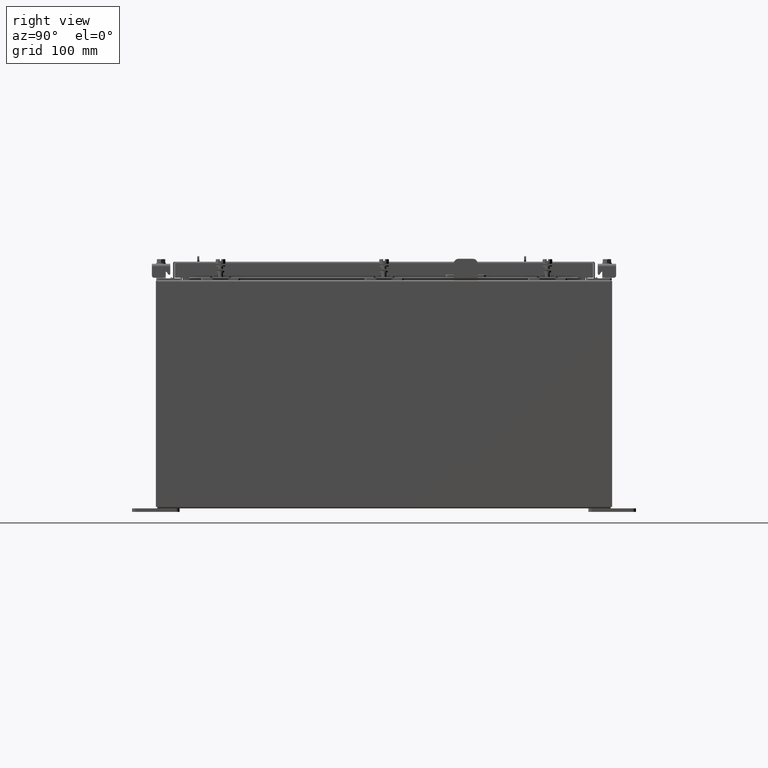
[diagram: clean part render]
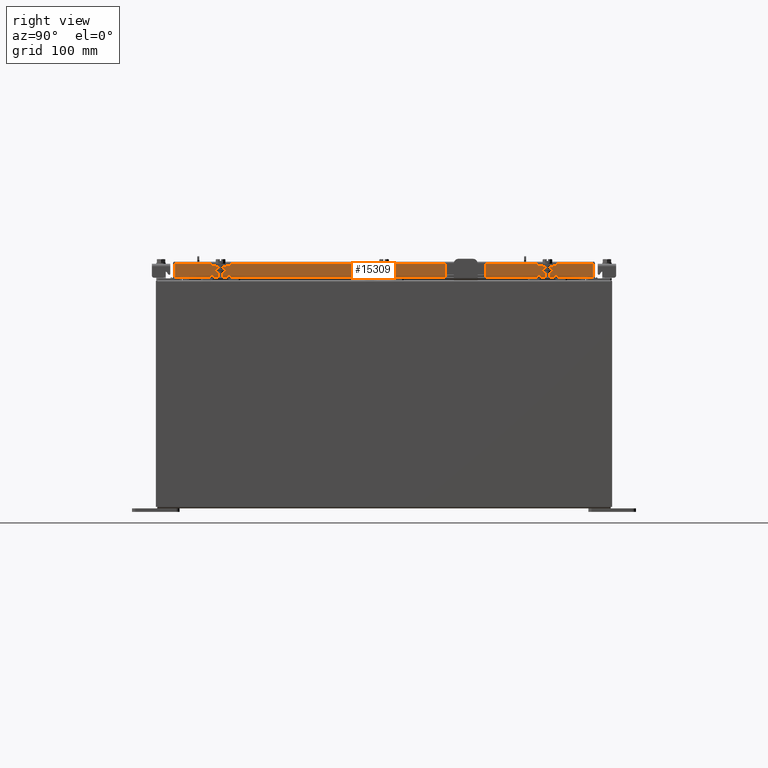
[diagram: same view with one face highlighted and labeled with its STEP entity id]
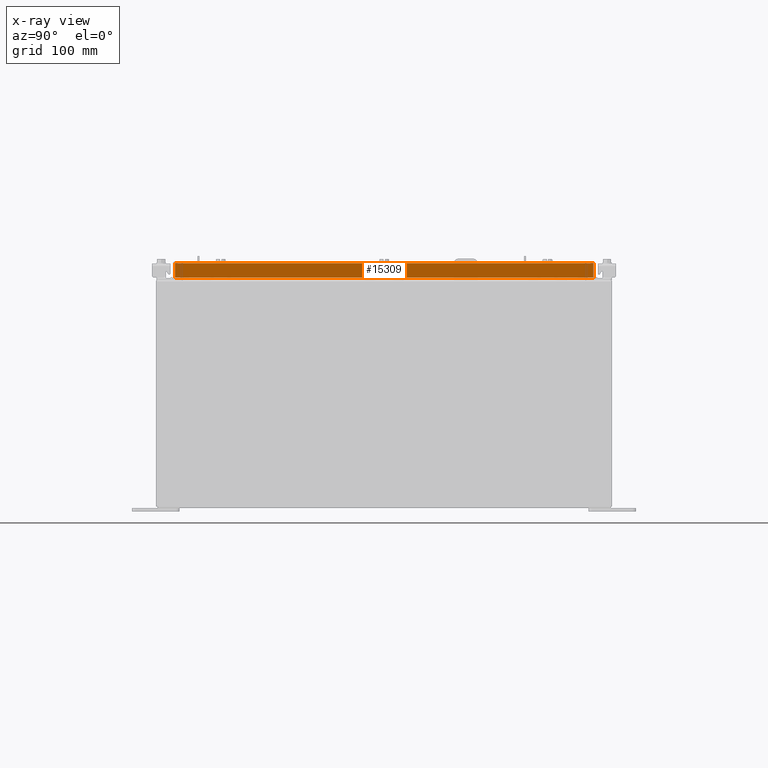
[diagram: x-ray of the same camera — body ghosted, the highlighted face saturated]
A machine part, right view. The second image highlights one B-rep face of the part: STEP entity #15309.
The next image is the same camera in x-ray: the body ghosted, the highlighted face saturated — about 0% of this face is hidden behind the body in this view.
In plain terms, the highlighted planar face has unit normal (1, 0, 0).
Its self-contained STEP definition (entity closure, byte-faithful):
#418 = CARTESIAN_POINT ( 'NONE',  ( 11.09399999999999200, 10.25515786437627200, -0.8500000000000020900 ) ) ;
#560 = CARTESIAN_POINT ( 'NONE',  ( 11.09399999999999900, 0.0000000000000000000, 3.059669752903974500E-014 ) ) ;
#859 = CARTESIAN_POINT ( 'NONE',  ( 11.09400000000000100, -11.00515786437626200, -0.8499999999999999800 ) ) ;
#965 = VECTOR ( 'NONE', #14808, 39.37007874015748100 ) ;
#1069 = VERTEX_POINT ( 'NONE', #11452 ) ;
#1261 = LINE ( 'NONE', #8795, #6459 ) ;
#2332 = DIRECTION ( 'NONE',  ( 2.818880942772360100E-015, 0.0000000000000000000, -1.000000000000000000 ) ) ;
#4014 = ORIENTED_EDGE ( 'NONE', *, *, #9704, .F. ) ;
#4772 = EDGE_CURVE ( 'NONE', #22102, #1069, #15943, .T. ) ;
#4861 = CARTESIAN_POINT ( 'NONE',  ( 11.09399999999999900, 11.00515786437626700, -0.08770000000000026400 ) ) ;
#5636 = VERTEX_POINT ( 'NONE', #8389 ) ;
#5789 = FACE_OUTER_BOUND ( 'NONE', #6153, .T. ) ;
#5922 = ORIENTED_EDGE ( 'NONE', *, *, #18742, .F. ) ;
#6068 = CARTESIAN_POINT ( 'NONE',  ( 11.09399999999999900, 0.0000000000000000000, -0.08770000000000026400 ) ) ;
#6153 = EDGE_LOOP ( 'NONE', ( #12035, #5922, #4014, #9086, #15082, #12425 ) ) ;
#6459 = VECTOR ( 'NONE', #19264, 39.37007874015748100 ) ;
#6703 = LINE ( 'NONE', #16585, #965 ) ;
#7192 = CARTESIAN_POINT ( 'NONE',  ( 11.09400000000000100, -11.09400000000000100, -0.8499999999999999800 ) ) ;
#7811 = DIRECTION ( 'NONE',  ( 0.0000000000000000000, -1.000000000000000000, 0.0000000000000000000 ) ) ;
#8389 = CARTESIAN_POINT ( 'NONE',  ( 11.09399999999999200, -10.25515786437626400, -0.8500000000000020900 ) ) ;
#8607 = LINE ( 'NONE', #10012, #22514 ) ;
#8697 = LINE ( 'NONE', #9757, #17429 ) ;
#8714 = AXIS2_PLACEMENT_3D ( 'NONE', #560, #12752, #2332 ) ;
#8795 = CARTESIAN_POINT ( 'NONE',  ( 11.09399999999999900, 11.00515786437626700, 1.092739197465705300E-013 ) ) ;
#9021 = EDGE_CURVE ( 'NONE', #15454, #1069, #8697, .T. ) ;
#9086 = ORIENTED_EDGE ( 'NONE', *, *, #15843, .F. ) ;
#9704 = EDGE_CURVE ( 'NONE', #15271, #5636, #6703, .T. ) ;
#9757 = CARTESIAN_POINT ( 'NONE',  ( 11.09399999999999900, -11.00515786437626700, -0.07470000000000015500 ) ) ;
#9823 = LINE ( 'NONE', #7192, #14993 ) ;
#10012 = CARTESIAN_POINT ( 'NONE',  ( 11.09400000000000100, -11.09400000000000100, -0.8499999999999999800 ) ) ;
#10682 = VERTEX_POINT ( 'NONE', #20973 ) ;
#10933 = PLANE ( 'NONE',  #8714 ) ;
#11452 = CARTESIAN_POINT ( 'NONE',  ( 11.09399999999999900, -11.00515786437626700, -0.08770000000000026400 ) ) ;
#11504 = DIRECTION ( 'NONE',  ( -2.818880942772360100E-015, -6.982962677686267500E-015, 1.000000000000000000 ) ) ;
#12035 = ORIENTED_EDGE ( 'NONE', *, *, #9021, .F. ) ;
#12425 = ORIENTED_EDGE ( 'NONE', *, *, #4772, .T. ) ;
#12752 = DIRECTION ( 'NONE',  ( 1.000000000000000000, 0.0000000000000000000, 2.818880942772360100E-015 ) ) ;
#14808 = DIRECTION ( 'NONE',  ( 0.0000000000000000000, -1.000000000000000000, 0.0000000000000000000 ) ) ;
#14993 = VECTOR ( 'NONE', #19366, 39.37007874015748100 ) ;
#15082 = ORIENTED_EDGE ( 'NONE', *, *, #18336, .T. ) ;
#15271 = VERTEX_POINT ( 'NONE', #418 ) ;
#15309 = ADVANCED_FACE ( 'NONE', ( #5789 ), #10933, .T. ) ;
#15454 = VERTEX_POINT ( 'NONE', #859 ) ;
#15843 = EDGE_CURVE ( 'NONE', #10682, #15271, #9823, .T. ) ;
#15943 = LINE ( 'NONE', #6068, #20052 ) ;
#16585 = CARTESIAN_POINT ( 'NONE',  ( 11.09399999999999200, 10.25515786437627200, -0.8500000000000020900 ) ) ;
#16935 = DIRECTION ( 'NONE',  ( 0.0000000000000000000, -1.000000000000000000, 0.0000000000000000000 ) ) ;
#17429 = VECTOR ( 'NONE', #11504, 39.37007874015748100 ) ;
#18336 = EDGE_CURVE ( 'NONE', #10682, #22102, #1261, .T. ) ;
#18742 = EDGE_CURVE ( 'NONE', #5636, #15454, #8607, .T. ) ;
#19264 = DIRECTION ( 'NONE',  ( -2.818880942772360100E-015, -6.982962677686267500E-015, 1.000000000000000000 ) ) ;
#19366 = DIRECTION ( 'NONE',  ( 0.0000000000000000000, -1.000000000000000000, 0.0000000000000000000 ) ) ;
#20052 = VECTOR ( 'NONE', #7811, 39.37007874015748100 ) ;
#20973 = CARTESIAN_POINT ( 'NONE',  ( 11.09400000000000100, 11.00515786437627200, -0.8499999999999999800 ) ) ;
#22102 = VERTEX_POINT ( 'NONE', #4861 ) ;
#22514 = VECTOR ( 'NONE', #16935, 39.37007874015748100 ) ;